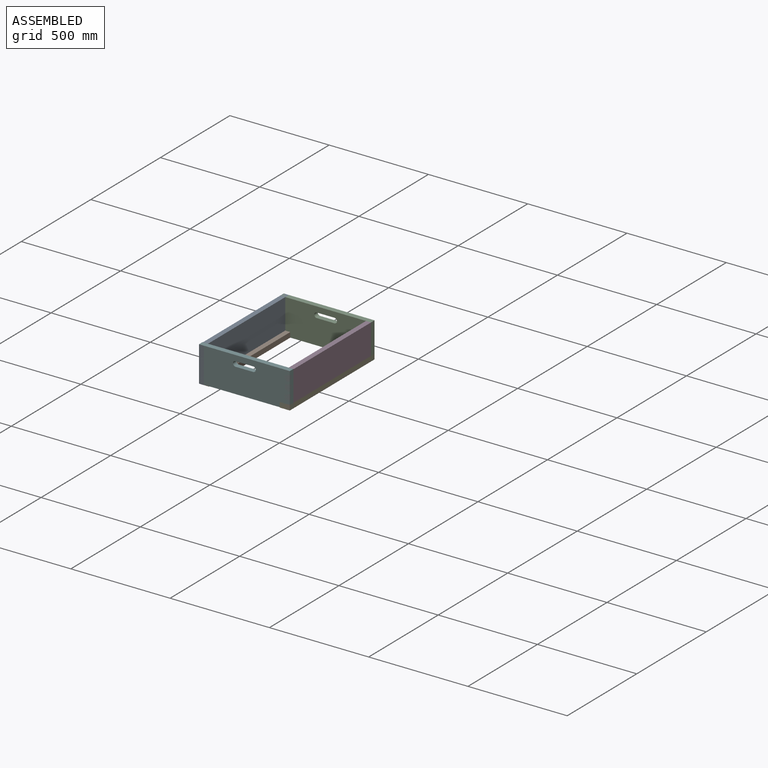
[diagram: assembled view]
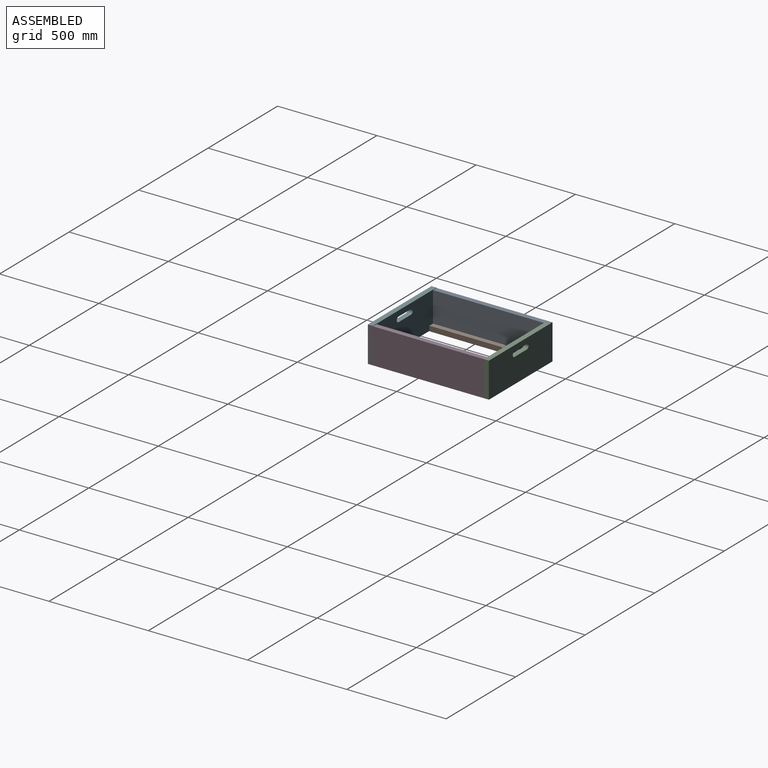
[diagram: assembled view, second angle]
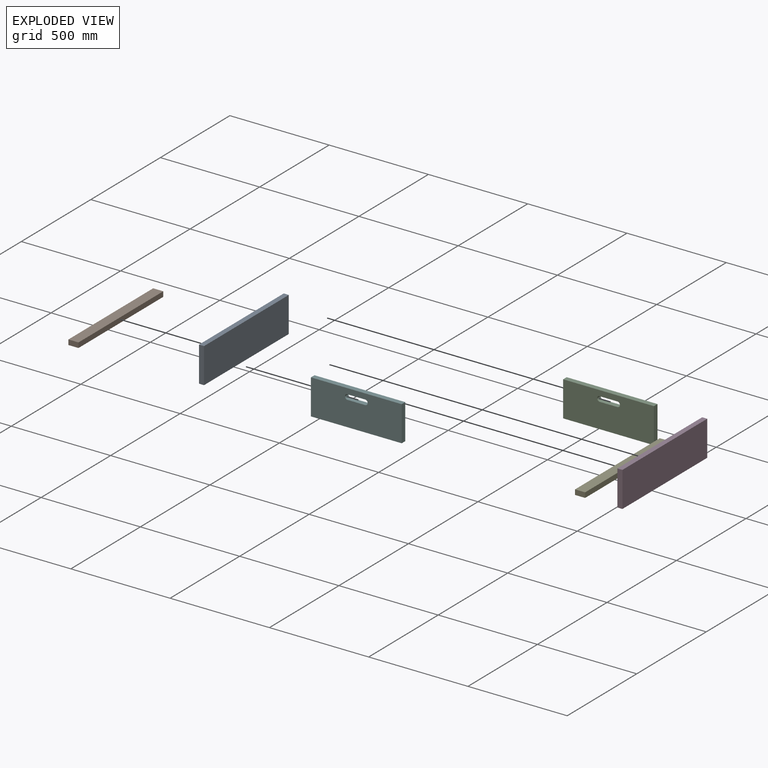
[diagram: exploded view]
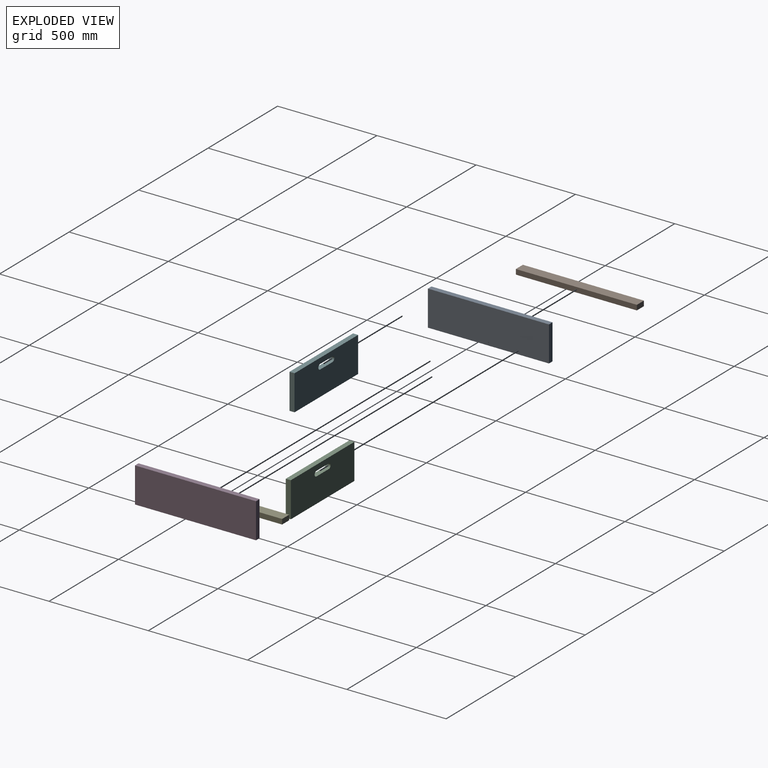
[diagram: exploded view, second angle]
ASSEMBLY  parts=6 mates=5
PART A: 6 faces, bbox 25.4x609.6x177.8 mm
  f0: plane 609.6x25.4mm, normal (0,0,1), area 15483.8mm2, adj f1,f3,f4,f5
  f1: plane 609.6x177.8mm, normal (-1,0,0), area 108386.9mm2, adj f0,f2,f4,f5
  f2: plane 609.6x25.4mm, normal (0,0,-1), area 15483.8mm2, adj f1,f3,f4,f5
  f3: plane 609.6x177.8mm, normal (1,0,0), area 108386.9mm2, adj f0,f2,f4,f5
  f4: plane 177.8x25.4mm, normal (0,-1,0), area 4516.1mm2, adj f0,f1,f2,f3
  f5: plane 177.8x25.4mm, normal (0,1,0), area 4516.1mm2, adj f0,f1,f2,f3
PART B: 6 faces, bbox 50.8x609.6x25.4 mm
  f0: plane 609.6x25.4mm, normal (-1,0,0), area 15483.8mm2, adj f1,f3,f4,f5
  f1: plane 609.6x50.8mm, normal (0,0,-1), area 30967.7mm2, adj f0,f2,f4,f5
  f2: plane 609.6x25.4mm, normal (1,0,0), area 15483.8mm2, adj f1,f3,f4,f5
  f3: plane 609.6x50.8mm, normal (0,0,1), area 30967.7mm2, adj f0,f2,f4,f5
  f4: plane 50.8x25.4mm, normal (0,-1,0), area 1290.3mm2, adj f0,f1,f2,f3
  f5: plane 50.8x25.4mm, normal (0,1,0), area 1290.3mm2, adj f0,f1,f2,f3
PART C: 10 faces, bbox 457.2x25.4x177.8 mm
  f0: plane 457.2x177.8mm, normal (0,1,0), area 78525.4mm2, adj f2,f3,f4,f5,f6,f7,f8,f9
  f1: plane 457.2x177.8mm, normal (0,-1,0), area 78525.4mm2, adj f2,f3,f4,f5,f6,f7,f8,f9
  f2: plane 457.2x25.4mm, normal (0,0,-1), area 11612.9mm2, adj f0,f1,f4,f5
  f3: plane 457.2x25.4mm, normal (0,0,1), area 11612.9mm2, adj f0,f1,f4,f5
  f4: plane 177.8x25.4mm, normal (1,0,0), area 4516.1mm2, adj f0,f1,f2,f3
  f5: plane 177.8x25.4mm, normal (-1,0,0), area 4516.1mm2, adj f0,f1,f2,f3
  f6: plane 88.9x25.4mm, normal (0,0,-1), area 2258.1mm2, adj f0,f1,f7,f9
  f7: cylinder r=12.7mm len=25.4mm, axis (0,-1,0), area 1013.4mm2, adj f0,f1,f6,f8
  f8: plane 88.9x25.4mm, normal (0,0,1), area 2258.1mm2, adj f0,f1,f7,f9
  f9: cylinder r=12.7mm len=25.4mm, axis (0,-1,0), area 1013.4mm2, adj f0,f1,f6,f8
PART D: same geometry as A
PART E: same geometry as B
PART F: same geometry as C
PLACE A t=(-1076.26,-627.29,-767.01)mm
PLACE B t=(-1063.56,-627.29,-843.21)mm
PLACE C t=(-860.36,-639.99,-767.01)mm
PLACE D t=(-644.46,-627.29,-767.01)mm
PLACE E t=(-657.16,-627.29,-843.21)mm
PLACE F t=(-860.36,-1224.19,-765.31)mm
MATE fastened B.f0 <-> A.f1  axis (-1,0,0) through (-1088.96,-932.09,-843.21)mm
MATE fastened F.f1 <-> A.f4  axis (0,-1,0) through (-860.36,-1236.89,-767.01)mm
MATE fastened A.f1 <-> C.f5  axis (-1,0,0) through (-1088.96,-932.09,-767.01)mm
MATE fastened D.f3 <-> E.f2  axis (1,0,0) through (-631.76,-932.09,-767.01)mm
MATE fastened C.f4 <-> D.f3  axis (1,0,0) through (-631.76,-639.99,-767.01)mm
